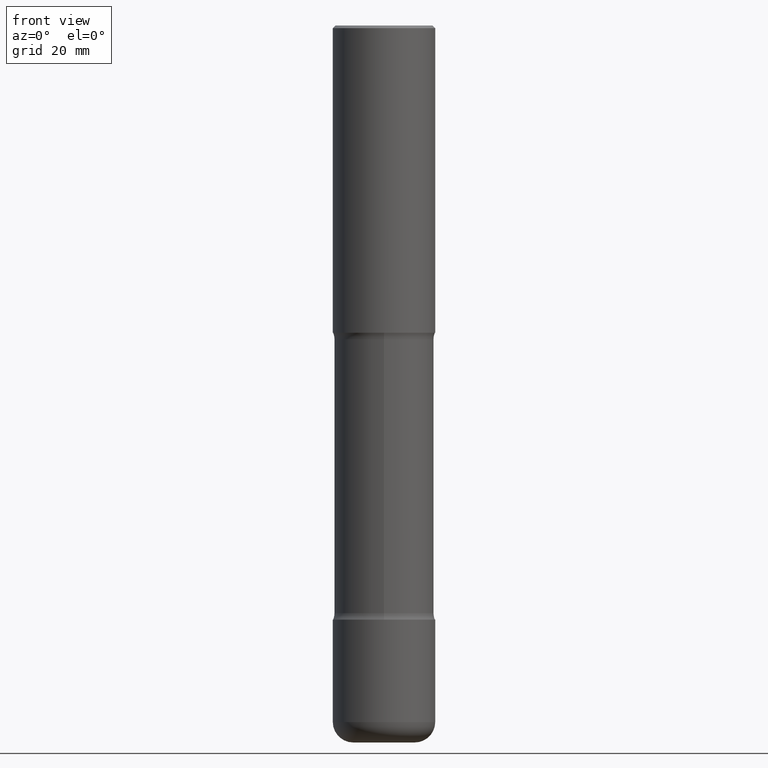
[diagram: clean part render]
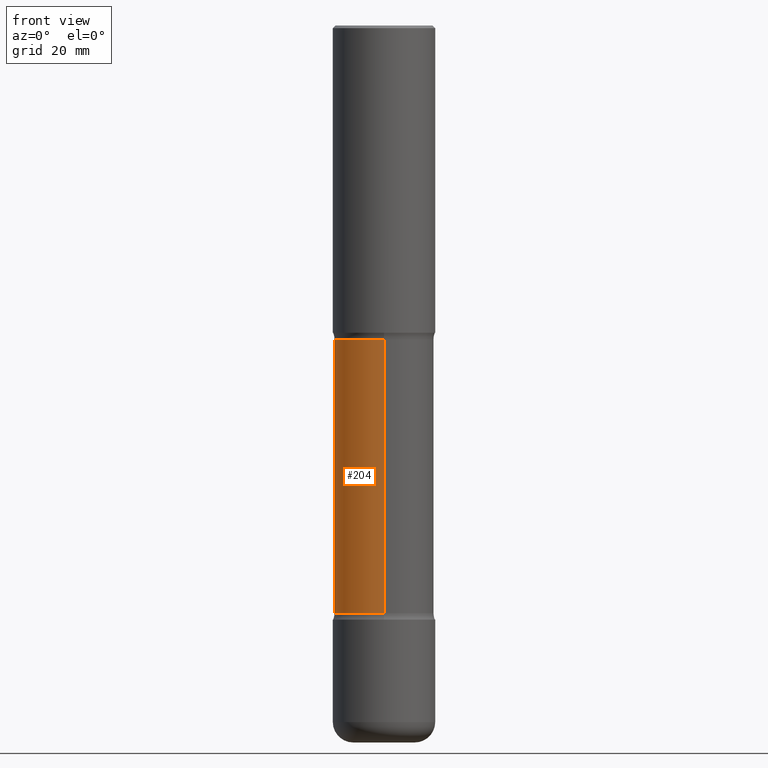
[diagram: same view with one face highlighted and labeled with its STEP entity id]
A machine part, front view. The second image highlights one B-rep face of the part: STEP entity #204.
In plain terms, the highlighted cylindrical surface (partial cylindrical patch) has radius 9.7409 mm, axis along (0, -0, -1).
Its self-contained STEP definition (entity closure, byte-faithful):
#14 = CARTESIAN_POINT ( 'NONE',  ( 1.104200435858908498E-28, -1.578010528209585513E-14, -4.517443352317408234 ) ) ;
#29 = CARTESIAN_POINT ( 'NONE',  ( -2.665989521933906951E-15, -0.3835000000000157727, -4.517443352317407346 ) ) ;
#32 = CIRCLE ( 'NONE', #212, 0.3835000000000000075 ) ;
#57 = DIRECTION ( 'NONE',  ( 6.982962677686265922E-15, 1.000000000000000000, -2.849385130288670661E-15 ) ) ;
#58 = CIRCLE ( 'NONE', #390, 0.3835000000000002851 ) ;
#63 = LINE ( 'NONE', #465, #460 ) ;
#98 = DIRECTION ( 'NONE',  ( 2.551873980375737716E-29, -3.339103073195795043E-15, -1.000000000000000000 ) ) ;
#123 = ORIENTED_EDGE ( 'NONE', *, *, #206, .F. ) ;
#132 = EDGE_LOOP ( 'NONE', ( #123, #394, #527, #494 ) ) ;
#154 = DIRECTION ( 'NONE',  ( 6.982962677686265133E-15, 1.000000000000000000, -2.849385130288669478E-15 ) ) ;
#164 = VERTEX_POINT ( 'NONE', #29 ) ;
#180 = AXIS2_PLACEMENT_3D ( 'NONE', #309, #380, #154 ) ;
#183 = VERTEX_POINT ( 'NONE', #199 ) ;
#189 = CARTESIAN_POINT ( 'NONE',  ( 2.677966186892741486E-15, 0.3834999999999915699, -2.411656647682594468 ) ) ;
#199 = CARTESIAN_POINT ( 'NONE',  ( 2.677966186892793550E-15, 0.3834999999999842424, -4.517443352317409122 ) ) ;
#201 = DIRECTION ( 'NONE',  ( 2.551873980375737716E-29, -3.339103073195795043E-15, -1.000000000000000000 ) ) ;
#204 = ADVANCED_FACE ( 'NONE', ( #526 ), #375, .T. ) ;
#206 = EDGE_CURVE ( 'NONE', #252, #164, #483, .T. ) ;
#212 = AXIS2_PLACEMENT_3D ( 'NONE', #14, #98, #57 ) ;
#235 = DIRECTION ( 'NONE',  ( 2.551873980375737716E-29, -3.339103073195795043E-15, -1.000000000000000000 ) ) ;
#252 = VERTEX_POINT ( 'NONE', #556 ) ;
#261 = CARTESIAN_POINT ( 'NONE',  ( 5.668302058810330557E-29, -8.748666425154899227E-15, -2.411656647682593135 ) ) ;
#298 = EDGE_CURVE ( 'NONE', #353, #183, #63, .T. ) ;
#303 = VECTOR ( 'NONE', #201, 39.37007874015748143 ) ;
#309 = CARTESIAN_POINT ( 'NONE',  ( 1.357947721502393649E-28, -1.910036462022546845E-14, -5.511800000000000033 ) ) ;
#316 = DIRECTION ( 'NONE',  ( 6.982962677686265133E-15, 1.000000000000000000, -3.561731412860835763E-15 ) ) ;
#341 = CARTESIAN_POINT ( 'NONE',  ( -2.631000982145247058E-15, -0.3835000000000192699, -5.511799999999999145 ) ) ;
#351 = EDGE_CURVE ( 'NONE', #164, #183, #32, .T. ) ;
#353 = VERTEX_POINT ( 'NONE', #189 ) ;
#375 = CYLINDRICAL_SURFACE ( 'NONE', #180, 0.3835000000000001741 ) ;
#380 = DIRECTION ( 'NONE',  ( 2.551873980375737716E-29, -3.339103073195795043E-15, -1.000000000000000000 ) ) ;
#390 = AXIS2_PLACEMENT_3D ( 'NONE', #261, #480, #316 ) ;
#394 = ORIENTED_EDGE ( 'NONE', *, *, #502, .T. ) ;
#460 = VECTOR ( 'NONE', #235, 39.37007874015748143 ) ;
#465 = CARTESIAN_POINT ( 'NONE',  ( 2.677966186892819583E-15, 0.3834999999999810227, -5.511800000000000921 ) ) ;
#480 = DIRECTION ( 'NONE',  ( 2.551873980375737716E-29, -3.339103073195795043E-15, -1.000000000000000000 ) ) ;
#483 = LINE ( 'NONE', #341, #303 ) ;
#494 = ORIENTED_EDGE ( 'NONE', *, *, #351, .F. ) ;
#502 = EDGE_CURVE ( 'NONE', #252, #353, #58, .T. ) ;
#526 = FACE_OUTER_BOUND ( 'NONE', #132, .T. ) ;
#527 = ORIENTED_EDGE ( 'NONE', *, *, #298, .T. ) ;
#556 = CARTESIAN_POINT ( 'NONE',  ( -2.665989521933964538E-15, -0.3835000000000090559, -2.411656647682591803 ) ) ;